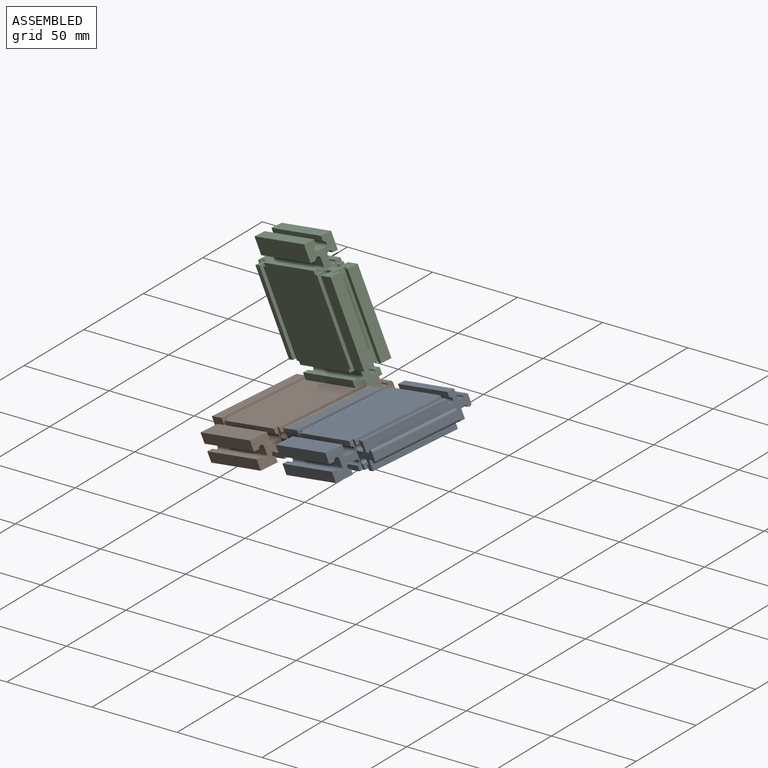
[diagram: assembled view]
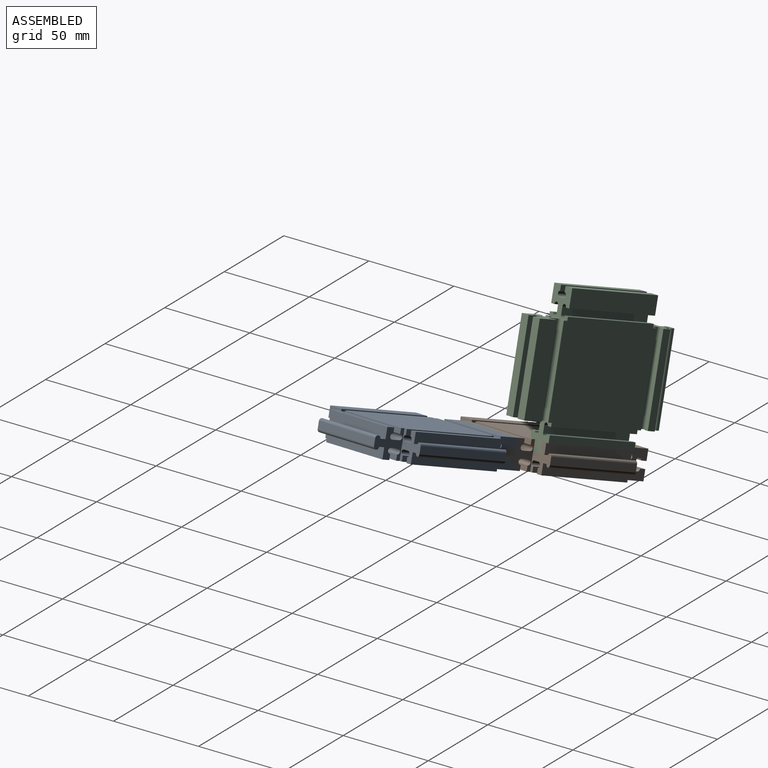
[diagram: assembled view, second angle]
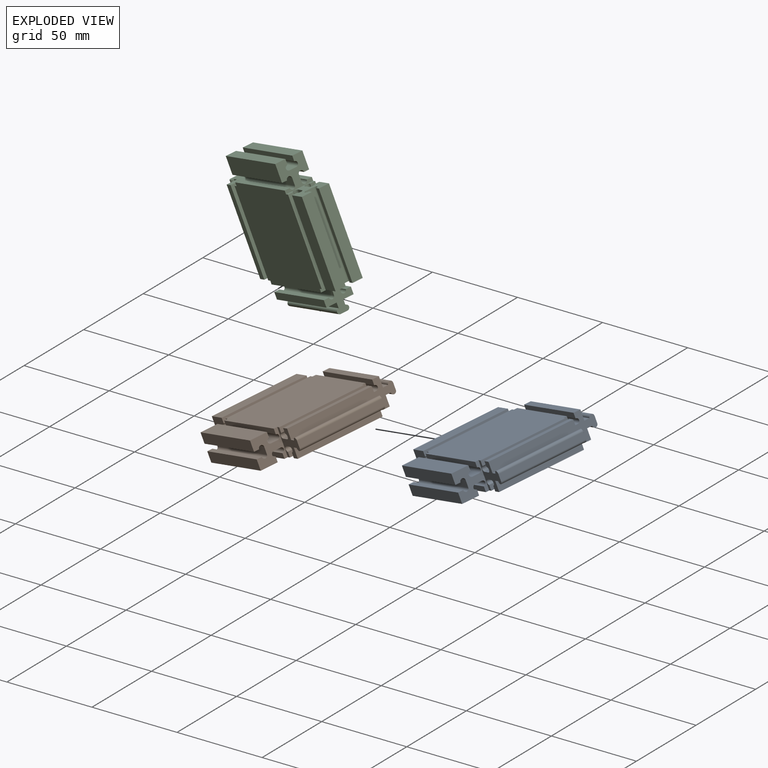
[diagram: exploded view]
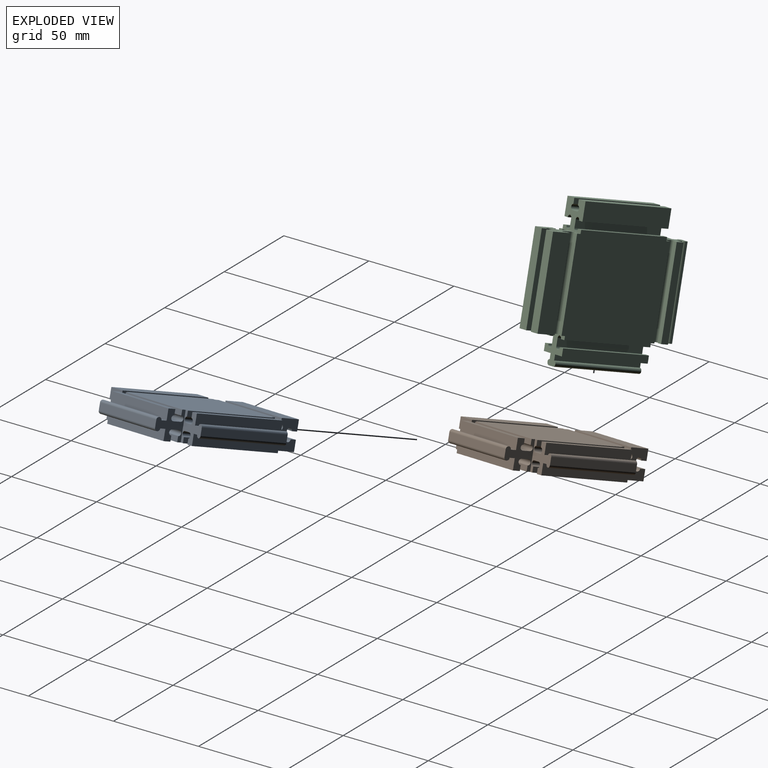
[diagram: exploded view, second angle]
ASSEMBLY  parts=3 mates=2
PART A: 86 faces, bbox 82x16x82 mm
  f0: plane 16x16mm, normal (1,0,0), area 128.9mm2, adj f4,f5,f6,f7,f8,f9,f10,f11
  f1: plane 16x16mm, normal (-1,0,0), area 128.9mm2, adj f4,f5,f6,f7,f8,f9,f10,f11
  f2: plane 16x16mm, normal (-1,0,0), area 162.8mm2, adj f4,f5,f25,f26,f27,f28,f29,f30
  f3: plane 16x16mm, normal (1,0,0), area 162.8mm2, adj f4,f5,f25,f26,f27,f28,f29,f30
  f4: plane 54x54mm, normal (0,-1,0), area 2900mm2, adj f0,f1,f2,f3,f15,f25,f62,f63
  f5: plane 54x54mm, normal (0,1,0), area 2900mm2, adj f0,f1,f2,f3,f16,f43,f44,f63
  f6: plane 50x4mm, normal (0,0,1), area 200mm2, adj f0,f1,f7,f24
  f7: cylinder r=1.5mm len=50mm, axis (1,0,0), area 235.6mm2, adj f0,f1,f6,f8
  f8: plane 50x3mm, normal (0,-1,0), area 150mm2, adj f0,f1,f7,f9
  f9: plane 50x6mm, normal (0,0,1), area 300mm2, adj f0,f1,f8,f10
  f10: plane 50x4mm, normal (0,-1,0), area 200mm2, adj f0,f1,f9,f11
  f11: plane 50x3mm, normal (0,0,-1), area 150mm2, adj f0,f1,f10,f12
  f12: cylinder r=1.5mm len=50mm, axis (1,0,0), area 235.6mm2, adj f0,f1,f11,f13
  f13: plane 50x4mm, normal (0,-1,0), area 200mm2, adj f0,f1,f12,f14
  f14: cylinder r=1.5mm len=50mm, axis (1,0,0), area 235.6mm2, adj f0,f1,f13,f15
  f15: plane 50x3mm, normal (0,0,1), area 150mm2, adj f0,f1,f4,f14
  f16: plane 50x3mm, normal (0,0,1), area 150mm2, adj f0,f1,f5,f17
  f17: cylinder r=1.5mm len=50mm, axis (1,0,0), area 235.6mm2, adj f0,f1,f16,f18
  f18: plane 50x4mm, normal (0,1,0), area 200mm2, adj f0,f1,f17,f19
  f19: cylinder r=1.5mm len=50mm, axis (1,0,0), area 235.6mm2, adj f0,f1,f18,f20
  f20: plane 50x3mm, normal (0,0,-1), area 150mm2, adj f0,f1,f19,f21
  f21: plane 50x4mm, normal (0,1,0), area 200mm2, adj f0,f1,f20,f22
  f22: plane 50x6mm, normal (0,0,1), area 300mm2, adj f0,f1,f21,f23
  f23: plane 50x3mm, normal (0,1,0), area 150mm2, adj f0,f1,f22,f24
  f24: cylinder r=1.5mm len=50mm, axis (1,0,0), area 235.6mm2, adj f0,f1,f6,f23
  f25: plane 50x3mm, normal (0,0,-1), area 150mm2, adj f2,f3,f4,f26
  f26: cylinder r=1.5mm len=50mm, axis (1,0,0), area 235.6mm2, adj f2,f3,f25,f27
  f27: plane 50x4mm, normal (0,-1,0), area 200mm2, adj f2,f3,f26,f28
  f28: cylinder r=1.5mm len=50mm, axis (1,0,0), area 235.6mm2, adj f2,f3,f27,f29
  f29: plane 50x3mm, normal (0,0,1), area 150mm2, adj f2,f3,f28,f30
  f30: plane 50x10mm, normal (0,-1,0), area 500mm2, adj f2,f3,f29,f31
  f31: plane 50x6mm, normal (0,0,-1), area 300mm2, adj f2,f3,f30,f32
  f32: plane 50x3mm, normal (0,1,0), area 150mm2, adj f2,f3,f31,f33
  f33: cylinder r=1.5mm len=50mm, axis (1,0,0), area 235.6mm2, adj f2,f3,f32,f34
  f34: plane 50x4mm, normal (0,0,-1), area 200mm2, adj f2,f3,f33,f35
  f35: cylinder r=1.5mm len=50mm, axis (1,0,0), area 235.6mm2, adj f2,f3,f34,f36
  f36: plane 50x3mm, normal (0,-1,0), area 150mm2, adj f2,f3,f35,f37
  f37: plane 50x6mm, normal (0,0,-1), area 300mm2, adj f2,f3,f36,f38
  f38: plane 50x10mm, normal (0,1,0), area 500mm2, adj f2,f3,f37,f39
  f39: plane 50x3mm, normal (0,0,1), area 150mm2, adj f2,f3,f38,f40
  f40: cylinder r=1.5mm len=50mm, axis (1,0,0), area 235.6mm2, adj f2,f3,f39,f41
  f41: plane 50x4mm, normal (0,1,0), area 200mm2, adj f2,f3,f40,f42
  f42: cylinder r=1.5mm len=50mm, axis (1,0,0), area 235.6mm2, adj f2,f3,f41,f43
  f43: plane 50x3mm, normal (0,0,-1), area 150mm2, adj f2,f3,f5,f42
  f44: plane 50x3mm, normal (-1,0,0), area 150mm2, adj f5,f45,f63,f64
  f45: cylinder r=1.5mm len=50mm, axis (0,0,1), area 235.6mm2, adj f44,f46,f63,f64
  f46: plane 50x4mm, normal (0,1,0), area 200mm2, adj f45,f47,f63,f64
  f47: cylinder r=1.5mm len=50mm, axis (0,0,1), area 235.6mm2, adj f46,f48,f63,f64
  f48: plane 50x3mm, normal (1,0,0), area 150mm2, adj f47,f49,f63,f64
  f49: plane 50x4mm, normal (0,1,0), area 200mm2, adj f48,f50,f63,f64
  f50: plane 50x6mm, normal (-1,0,0), area 300mm2, adj f49,f51,f63,f64
  f51: plane 50x3mm, normal (0,1,0), area 150mm2, adj f50,f52,f63,f64
  f52: cylinder r=1.5mm len=50mm, axis (0,0,1), area 235.6mm2, adj f51,f53,f63,f64
  f53: plane 50x4mm, normal (-1,0,0), area 200mm2, adj f52,f54,f63,f64
  f54: cylinder r=1.5mm len=50mm, axis (0,0,1), area 235.6mm2, adj f53,f55,f63,f64
  f55: plane 50x3mm, normal (0,-1,0), area 150mm2, adj f54,f56,f63,f64
  f56: plane 50x6mm, normal (-1,0,0), area 300mm2, adj f55,f57,f63,f64
  f57: plane 50x4mm, normal (0,-1,0), area 200mm2, adj f56,f58,f63,f64
  f58: plane 50x3mm, normal (1,0,0), area 150mm2, adj f57,f59,f63,f64
  f59: cylinder r=1.5mm len=50mm, axis (0,0,1), area 235.6mm2, adj f58,f60,f63,f64
  f60: plane 50x4mm, normal (0,-1,0), area 200mm2, adj f59,f61,f63,f64
  f61: cylinder r=1.5mm len=50mm, axis (0,0,1), area 235.6mm2, adj f60,f62,f63,f64
  f62: plane 50x3mm, normal (-1,0,0), area 150mm2, adj f4,f61,f63,f64
  f63: plane 16x16mm, normal (0,0,-1), area 128.9mm2, adj f2,f4,f5,f44,f45,f46,f47,f48
  f64: plane 16x16mm, normal (0,0,1), area 128.9mm2, adj f1,f4,f5,f44,f45,f46,f47,f48
  f65: plane 50x4mm, normal (1,0,0), area 200mm2, adj f66,f83,f84,f85
  f66: cylinder r=1.5mm len=50mm, axis (0,0,1), area 235.6mm2, adj f65,f67,f84,f85
  f67: plane 50x3mm, normal (0,-1,0), area 150mm2, adj f66,f68,f84,f85
  f68: plane 50x6mm, normal (1,0,0), area 300mm2, adj f67,f69,f84,f85
  f69: plane 50x10mm, normal (0,1,0), area 500mm2, adj f68,f70,f84,f85
  f70: plane 50x3mm, normal (-1,0,0), area 150mm2, adj f69,f71,f84,f85
  f71: cylinder r=1.5mm len=50mm, axis (0,0,1), area 235.6mm2, adj f70,f72,f84,f85
  f72: plane 50x4mm, normal (0,1,0), area 200mm2, adj f71,f73,f84,f85
  f73: cylinder r=1.5mm len=50mm, axis (0,0,1), area 235.6mm2, adj f72,f74,f84,f85
  f74: plane 50x3mm, normal (1,0,0), area 150mm2, adj f5,f73,f84,f85
  f75: plane 50x3mm, normal (1,0,0), area 150mm2, adj f4,f76,f84,f85
  f76: cylinder r=1.5mm len=50mm, axis (0,0,1), area 235.6mm2, adj f75,f77,f84,f85
  f77: plane 50x4mm, normal (0,-1,0), area 200mm2, adj f76,f78,f84,f85
  f78: cylinder r=1.5mm len=50mm, axis (0,0,1), area 235.6mm2, adj f77,f79,f84,f85
  f79: plane 50x3mm, normal (-1,0,0), area 150mm2, adj f78,f80,f84,f85
  f80: plane 50x10mm, normal (0,-1,0), area 500mm2, adj f79,f81,f84,f85
  f81: plane 50x6mm, normal (1,0,0), area 300mm2, adj f80,f82,f84,f85
  f82: plane 50x3mm, normal (0,1,0), area 150mm2, adj f81,f83,f84,f85
  f83: cylinder r=1.5mm len=50mm, axis (0,0,1), area 235.6mm2, adj f65,f82,f84,f85
  f84: plane 16x16mm, normal (0,0,-1), area 162.8mm2, adj f3,f4,f5,f65,f66,f67,f68,f69
  f85: plane 16x16mm, normal (0,0,1), area 162.8mm2, adj f0,f4,f5,f65,f66,f67,f68,f69
PART B: same geometry as A
PART C: same geometry as A
PLACE A rot(axis=(0.02,0.66,0.75),149.9deg) t=(89.99,-2.27,128.64)mm
PLACE B rot(axis=(0.02,0.66,0.75),149.9deg) t=(24.27,28.43,105.93)mm
PLACE C rot(axis=(-0.11,-0.97,-0.23),111.7deg) t=(25.21,59.99,145.89)mm
MATE fastened B.f18 <-> C.f53  axis (-0.35,-0.06,0.93) through (36.78,55.27,106.03)mm
MATE fastened A.f65 <-> B.f53  axis (-0.86,0.4,-0.3) through (71.5,35.19,115.63)mm
